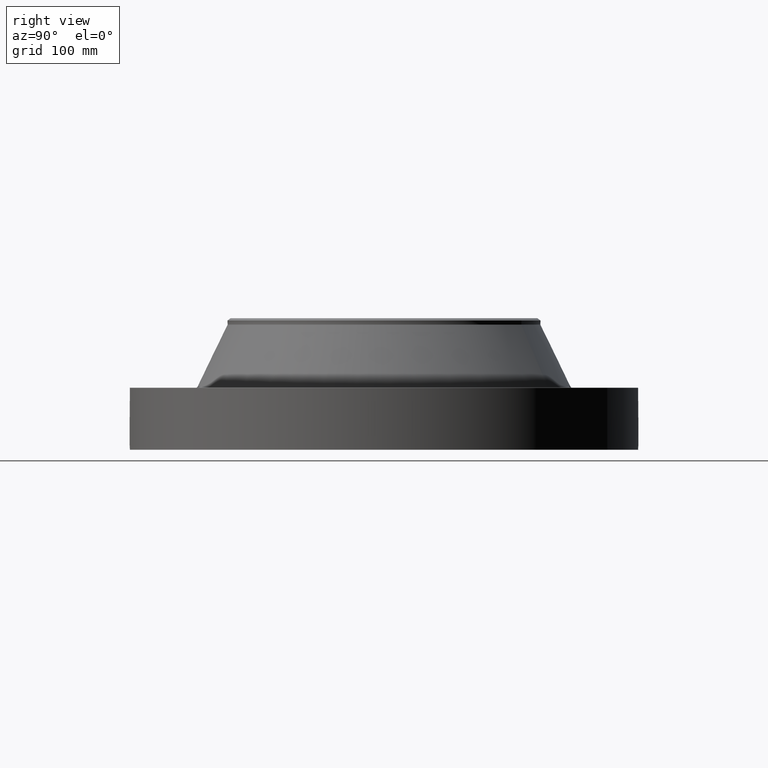
[diagram: clean part render]
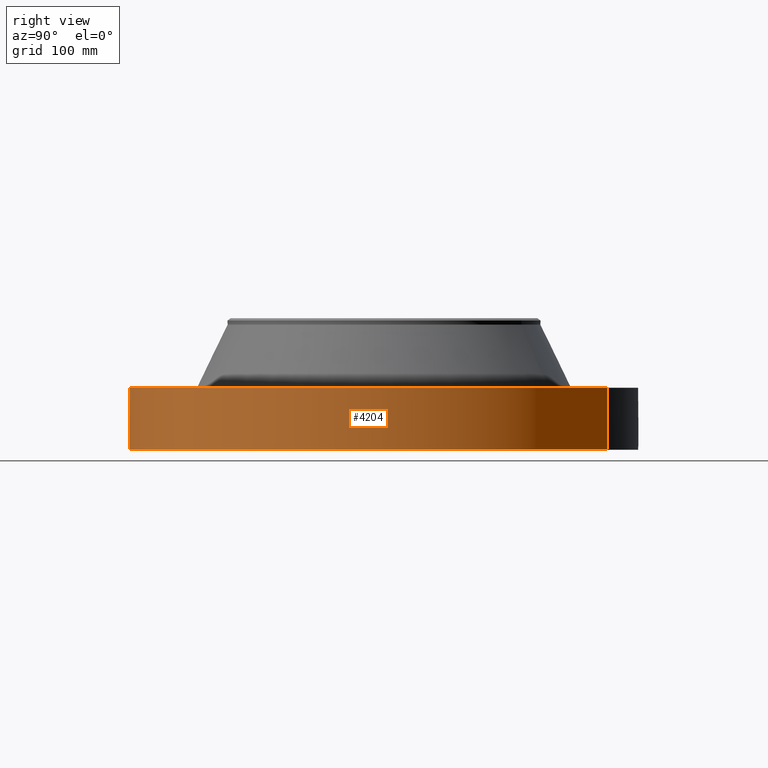
[diagram: same view with one face highlighted and labeled with its STEP entity id]
A machine part, right view. The second image highlights one B-rep face of the part: STEP entity #4204.
In plain terms, the highlighted cylindrical surface (partial cylindrical patch) has radius 371.475 mm, axis along (0, 0, -1).
Its self-contained STEP definition (entity closure, byte-faithful):
#2918=AXIS2_PLACEMENT_3D('Circle Axis2P3D',#2916,#2917,$) ;
#3991=AXIS2_PLACEMENT_3D('Cylinder Axis2P3D',#3988,#3989,#3990) ;
#4108=AXIS2_PLACEMENT_3D('Circle Axis2P3D',#4106,#4107,$) ;
#2916=CARTESIAN_POINT('Axis2P3D Location',(0.,0.,3.56200000001)) ;
#2920=CARTESIAN_POINT('Vertex',(7.01159850211,12.8346449677,3.56200000001)) ;
#2922=CARTESIAN_POINT('Vertex',(-7.01159850211,-12.8346449677,3.56200000001)) ;
#3988=CARTESIAN_POINT('Axis2P3D Location',(0.,0.,3.78100000002)) ;
#3997=CARTESIAN_POINT('Vertex',(-7.01159850211,-12.8346449677,2.23792987641E-015)) ;
#3999=CARTESIAN_POINT('Vertex',(7.01159850211,12.8346449677,2.23792987641E-015)) ;
#4002=CARTESIAN_POINT('Line Origine',(-7.01159850211,-12.8346449677,1.78100000001)) ;
#4007=CARTESIAN_POINT('Line Origine',(7.01159850211,12.8346449677,1.78100000001)) ;
#4106=CARTESIAN_POINT('Axis2P3D Location',(0.,0.,1.67844740731E-015)) ;
#4118=CARTESIAN_POINT('Control Point',(0.000716086753144,-14.6249999825,1.1041184612)) ;
#4119=CARTESIAN_POINT('Control Point',(0.0190203187321,-14.6249990863,1.10408148988)) ;
#4120=CARTESIAN_POINT('Control Point',(0.0373213430762,-14.6249635537,1.10262130561)) ;
#4121=CARTESIAN_POINT('Control Point',(0.0553996221664,-14.6248950726,1.09975560669)) ;
#4122=CARTESIAN_POINT('Vertex',(0.000715719218022,-14.6249999825,1.10411851049)) ;
#4124=CARTESIAN_POINT('Vertex',(0.0553907382761,-14.6248953593,1.09975703323)) ;
#4128=CARTESIAN_POINT('Control Point',(0.0553906426159,-14.6248951066,1.09975648393)) ;
#4129=CARTESIAN_POINT('Control Point',(0.0957910872242,-14.6247420931,1.09531626056)) ;
#4130=CARTESIAN_POINT('Control Point',(0.135547313123,-14.6244176887,1.08352583264)) ;
#4131=CARTESIAN_POINT('Control Point',(0.172161792286,-14.6239866425,1.06517074421)) ;
#4132=CARTESIAN_POINT('Vertex',(0.172161792286,-14.6239866425,1.06517074421)) ;
#4136=CARTESIAN_POINT('Control Point',(0.0309704717696,-14.6249672079,0.341185931315)) ;
#4137=CARTESIAN_POINT('Control Point',(0.0960970499538,-14.624829293,0.349430397408)) ;
#4138=CARTESIAN_POINT('Control Point',(0.159165957751,-14.6243332142,0.371292325454)) ;
#4139=CARTESIAN_POINT('Control Point',(0.216216294266,-14.6235308002,0.406104490852)) ;
#4140=CARTESIAN_POINT('Control Point',(0.288565984596,-14.6222181906,0.474194043626)) ;
#4141=CARTESIAN_POINT('Control Point',(0.336122439553,-14.6211483161,0.558637787201)) ;
#4142=CARTESIAN_POINT('Control Point',(0.349159052219,-14.6208369788,0.588701529223)) ;
#4143=CARTESIAN_POINT('Control Point',(0.371366298728,-14.620290059,0.658954862153)) ;
#4144=CARTESIAN_POINT('Control Point',(0.3768524334,-14.6201424353,0.732133985875)) ;
#4145=CARTESIAN_POINT('Control Point',(0.374588858519,-14.620202394,0.77295242139)) ;
#4146=CARTESIAN_POINT('Control Point',(0.356196992695,-14.620681159,0.87067833866)) ;
#4147=CARTESIAN_POINT('Control Point',(0.30790390765,-14.6218049341,0.957874328916)) ;
#4148=CARTESIAN_POINT('Control Point',(0.269657987096,-14.6226140453,1.00315422221)) ;
#4149=CARTESIAN_POINT('Control Point',(0.223443498136,-14.6233829254,1.03946287241)) ;
#4150=CARTESIAN_POINT('Control Point',(0.172161792286,-14.6239866425,1.06517074421)) ;
#4151=CARTESIAN_POINT('Vertex',(0.0309704717696,-14.6249672079,0.341185931315)) ;
#4155=CARTESIAN_POINT('Control Point',(0.0309704717696,-14.6249672079,0.341185931315)) ;
#4156=CARTESIAN_POINT('Control Point',(0.0206420517921,-14.6249890798,0.340874084726)) ;
#4157=CARTESIAN_POINT('Control Point',(0.0103062211378,-14.625000002,0.340937171896)) ;
#4158=CARTESIAN_POINT('Control Point',(-2.72878352367E-006,-14.6250000001,0.341374667805)) ;
#4159=CARTESIAN_POINT('Vertex',(-2.72878354229E-006,-14.6250000001,0.341374667805)) ;
#4163=CARTESIAN_POINT('Control Point',(-0.192662631068,-14.6237309231,0.397344435508)) ;
#4164=CARTESIAN_POINT('Control Point',(-0.149019870153,-14.6243059015,0.371999869204)) ;
#4165=CARTESIAN_POINT('Control Point',(-0.101119075306,-14.6247640417,0.353765749113)) ;
#4166=CARTESIAN_POINT('Control Point',(-0.0508066407697,-14.6249999906,0.343530706904)) ;
#4167=CARTESIAN_POINT('Control Point',(-2.72878353666E-006,-14.6250000001,0.341374667805)) ;
#4168=CARTESIAN_POINT('Vertex',(-0.192662631068,-14.6237309231,0.397344435508)) ;
#4172=CARTESIAN_POINT('Control Point',(-0.192662631068,-14.6237309231,0.397344435508)) ;
#4173=CARTESIAN_POINT('Control Point',(-0.249518043723,-14.6229818726,0.430361953661)) ;
#4174=CARTESIAN_POINT('Control Point',(-0.299619064563,-14.6220454516,0.474691396443)) ;
#4175=CARTESIAN_POINT('Control Point',(-0.339823000179,-14.6210933496,0.528791236317)) ;
#4176=CARTESIAN_POINT('Control Point',(-0.384112236447,-14.6199651971,0.626956102246)) ;
#4177=CARTESIAN_POINT('Control Point',(-0.392725031464,-14.6197247345,0.732244386113)) ;
#4178=CARTESIAN_POINT('Control Point',(-0.39062068621,-14.6197828204,0.772393678485)) ;
#4179=CARTESIAN_POINT('Control Point',(-0.376487312007,-14.6201662088,0.847281981628)) ;
#4180=CARTESIAN_POINT('Control Point',(-0.344392716012,-14.6209577611,0.915701625686)) ;
#4181=CARTESIAN_POINT('Control Point',(-0.32533283251,-14.6214042256,0.946122653943)) ;
#4182=CARTESIAN_POINT('Control Point',(-0.263575029092,-14.6227270884,1.02259978854)) ;
#4183=CARTESIAN_POINT('Control Point',(-0.180406457749,-14.6240432514,1.07561246055)) ;
#4184=CARTESIAN_POINT('Control Point',(-0.1215715678,-14.6246891249,1.09767108549)) ;
#4185=CARTESIAN_POINT('Control Point',(-0.060304522861,-14.6250001067,1.10711089422)) ;
#4186=CARTESIAN_POINT('Control Point',(2.58579355513E-005,-14.625,1.1041529843)) ;
#4187=CARTESIAN_POINT('Vertex',(2.58579355461E-005,-14.625,1.1041529843)) ;
#4191=CARTESIAN_POINT('Control Point',(0.000715719208393,-14.6249999825,1.10411851047)) ;
#4192=CARTESIAN_POINT('Control Point',(0.000370813091086,-14.6249999994,1.10413607165)) ;
#4193=CARTESIAN_POINT('Control Point',(2.58579406302E-005,-14.625,1.1041529843)) ;
#2917=DIRECTION('Axis2P3D Direction',(0.,0.,-0.0393700787402)) ;
#3989=DIRECTION('Axis2P3D Direction',(0.,0.,-0.0393700787402)) ;
#3990=DIRECTION('Axis2P3D XDirection',(0.0188750212049,0.0345504945626,0.)) ;
#4003=DIRECTION('Vector Direction',(0.,0.,-0.0393700787402)) ;
#4008=DIRECTION('Vector Direction',(0.,0.,-0.0393700787402)) ;
#4107=DIRECTION('Axis2P3D Direction',(0.,0.,-0.0393700787402)) ;
#4004=VECTOR('Line Direction',#4003,0.0393700787402) ;
#4009=VECTOR('Line Direction',#4008,0.0393700787402) ;
#4112=ORIENTED_EDGE('',*,*,#4110,.F.) ;
#4113=ORIENTED_EDGE('',*,*,#4011,.T.) ;
#4114=ORIENTED_EDGE('',*,*,#2924,.T.) ;
#4115=ORIENTED_EDGE('',*,*,#4006,.F.) ;
#4196=ORIENTED_EDGE('',*,*,#4126,.T.) ;
#4197=ORIENTED_EDGE('',*,*,#4134,.T.) ;
#4198=ORIENTED_EDGE('',*,*,#4153,.F.) ;
#4199=ORIENTED_EDGE('',*,*,#4161,.T.) ;
#4200=ORIENTED_EDGE('',*,*,#4170,.F.) ;
#4201=ORIENTED_EDGE('',*,*,#4189,.T.) ;
#4202=ORIENTED_EDGE('',*,*,#4194,.F.) ;
#4203=FACE_BOUND('',#4195,.T.) ;
#4204=ADVANCED_FACE('PartBody',(#4116,#4203),#3992,.T.) ;
#4117=B_SPLINE_CURVE_WITH_KNOTS('',3,(#4118,#4119,#4120,#4121),.UNSPECIFIED.,.F.,.U.,(4,4),(34.6165608199,36.6472417494),.UNSPECIFIED.) ;
#4127=B_SPLINE_CURVE_WITH_KNOTS('',3,(#4128,#4129,#4130,#4131),.UNSPECIFIED.,.F.,.U.,(4,4),(0.,4.5668866414),.UNSPECIFIED.) ;
#4135=B_SPLINE_CURVE_WITH_KNOTS('',5,(#4136,#4137,#4138,#4139,#4140,#4141,#4142,#4143,#4144,#4145,#4146,#4147,#4148,#4149,#4150),.UNSPECIFIED.,.F.,.U.,(6,3,3,3,6),(0.,11.4086060918,17.2512745371,24.6138259228,35.2743509041),.UNSPECIFIED.) ;
#4154=B_SPLINE_CURVE_WITH_KNOTS('',3,(#4155,#4156,#4157,#4158),.UNSPECIFIED.,.F.,.U.,(4,4),(0.,1.07740583904),.UNSPECIFIED.) ;
#4162=B_SPLINE_CURVE_WITH_KNOTS('',4,(#4163,#4164,#4165,#4166,#4167),.UNSPECIFIED.,.F.,.U.,(5,5),(0.,7.07947066137),.UNSPECIFIED.) ;
#4171=B_SPLINE_CURVE_WITH_KNOTS('',5,(#4172,#4173,#4174,#4175,#4176,#4177,#4178,#4179,#4180,#4181,#4182,#4183,#4184,#4185,#4186),.UNSPECIFIED.,.F.,.U.,(6,3,3,3,6),(0.,11.5284358836,18.6014747665,25.0195536885,36.2965539892),.UNSPECIFIED.) ;
#4190=B_SPLINE_CURVE_WITH_KNOTS('',2,(#4191,#4192,#4193),.UNSPECIFIED.,.F.,.U.,(3,3),(1.02315573588,1.04894744785),.UNSPECIFIED.) ;
#2919=CIRCLE('generated circle',#2918,14.6250000001) ;
#4109=CIRCLE('generated circle',#4108,14.6250000001) ;
#3992=CYLINDRICAL_SURFACE('generated cylinder',#3991,14.6250000001) ;
#2924=EDGE_CURVE('',#2921,#2923,#2919,.T.) ;
#4006=EDGE_CURVE('',#3998,#2923,#4005,.F.) ;
#4011=EDGE_CURVE('',#4000,#2921,#4010,.F.) ;
#4110=EDGE_CURVE('',#4000,#3998,#4109,.T.) ;
#4126=EDGE_CURVE('',#4123,#4125,#4117,.T.) ;
#4134=EDGE_CURVE('',#4125,#4133,#4127,.T.) ;
#4153=EDGE_CURVE('',#4152,#4133,#4135,.T.) ;
#4161=EDGE_CURVE('',#4152,#4160,#4154,.T.) ;
#4170=EDGE_CURVE('',#4169,#4160,#4162,.T.) ;
#4189=EDGE_CURVE('',#4169,#4188,#4171,.T.) ;
#4194=EDGE_CURVE('',#4123,#4188,#4190,.T.) ;
#4111=EDGE_LOOP('',(#4112,#4113,#4114,#4115)) ;
#4195=EDGE_LOOP('',(#4196,#4197,#4198,#4199,#4200,#4201,#4202)) ;
#4116=FACE_OUTER_BOUND('',#4111,.T.) ;
#4005=LINE('Line',#4002,#4004) ;
#4010=LINE('Line',#4007,#4009) ;
#2921=VERTEX_POINT('',#2920) ;
#2923=VERTEX_POINT('',#2922) ;
#3998=VERTEX_POINT('',#3997) ;
#4000=VERTEX_POINT('',#3999) ;
#4123=VERTEX_POINT('',#4122) ;
#4125=VERTEX_POINT('',#4124) ;
#4133=VERTEX_POINT('',#4132) ;
#4152=VERTEX_POINT('',#4151) ;
#4160=VERTEX_POINT('',#4159) ;
#4169=VERTEX_POINT('',#4168) ;
#4188=VERTEX_POINT('',#4187) ;